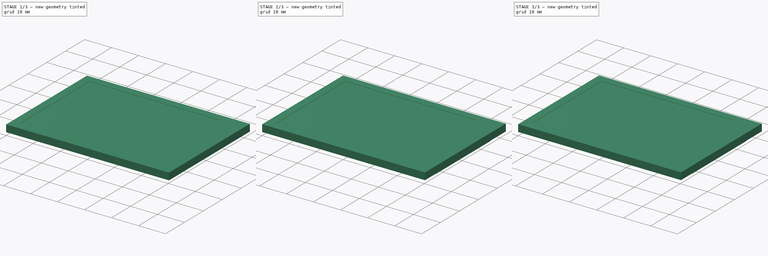
[diagram: build sequence overview — one tinted view per stage of 3, left to right]
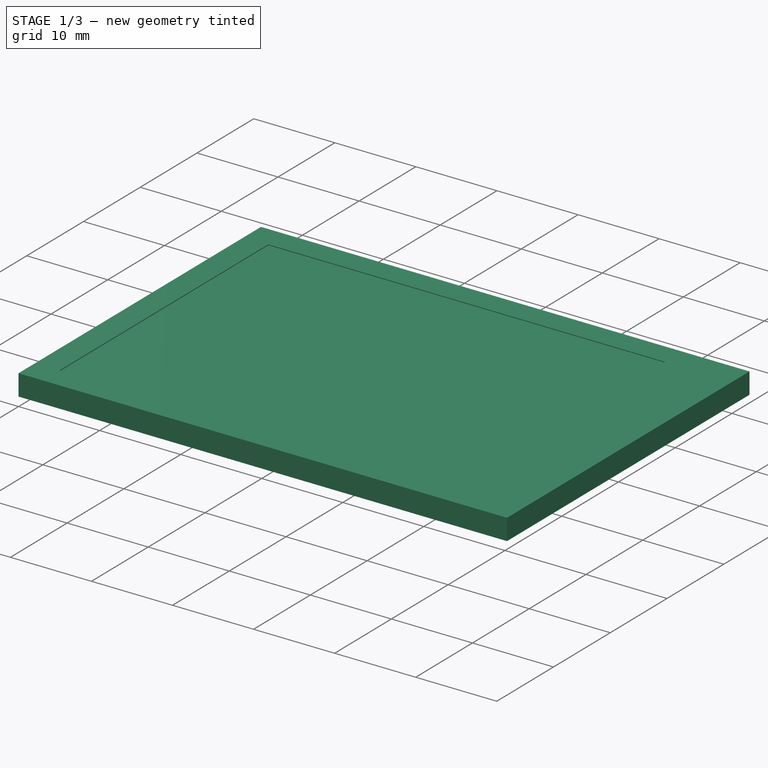
[diagram: stage 1 of 3 — iso view after this stage's code; geometry added in this stage tinted green]
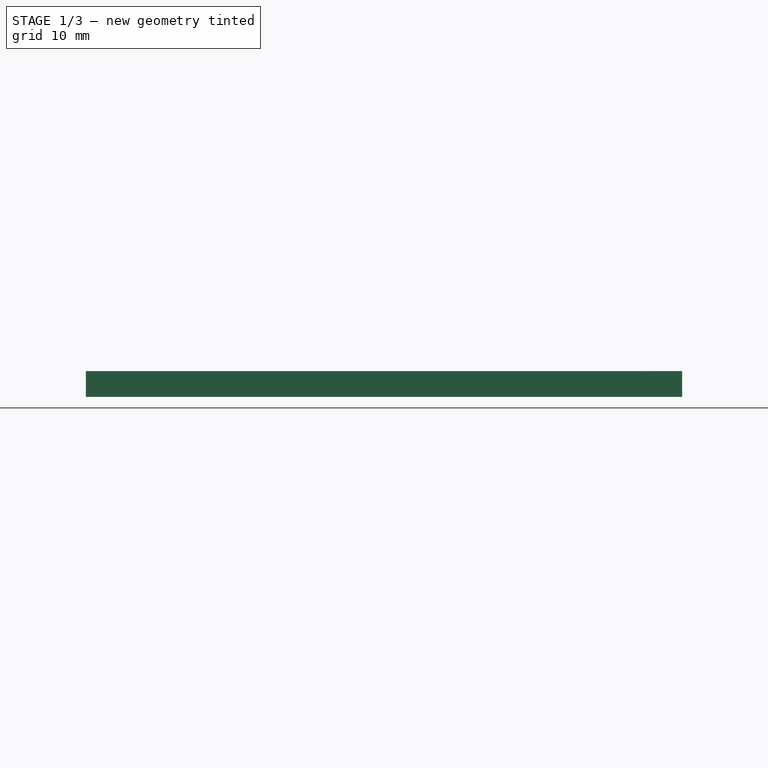
[diagram: stage 1 of 3 — front view after this stage's code; geometry added in this stage tinted green]
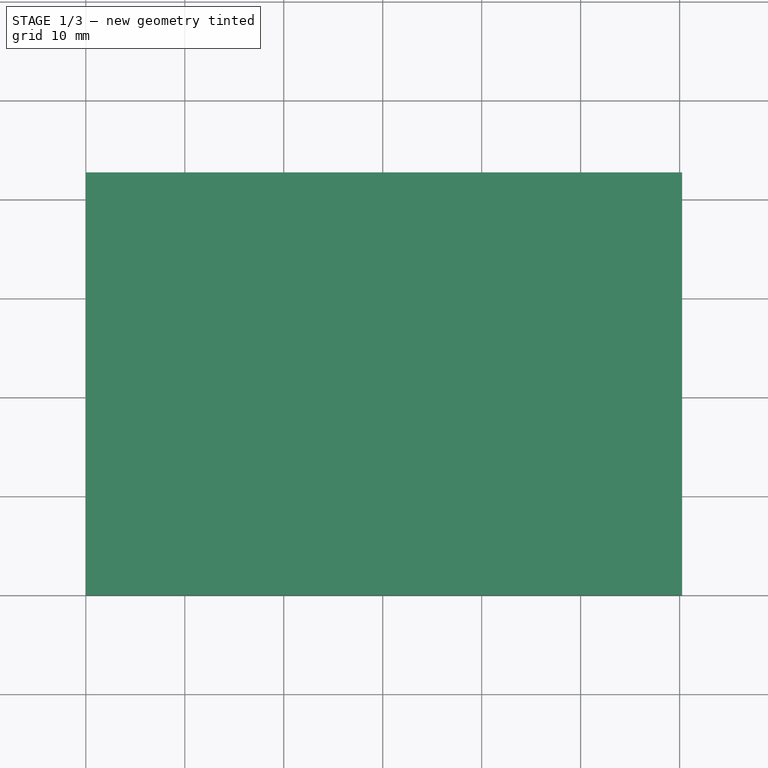
[diagram: stage 1 of 3 — top view after this stage's code; geometry added in this stage tinted green]
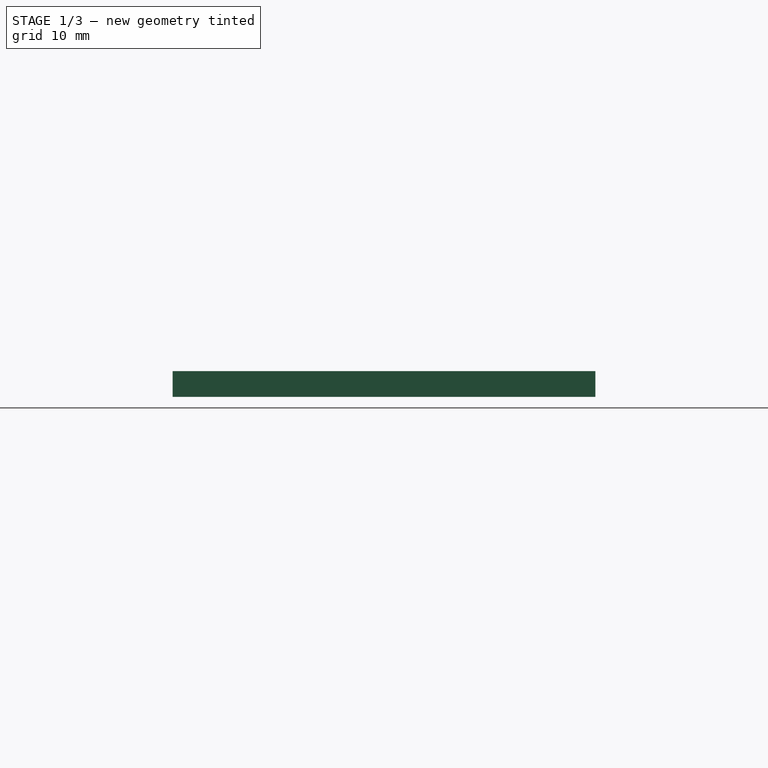
[diagram: stage 1 of 3 — right view after this stage's code; geometry added in this stage tinted green]
FCSTD DOCUMENT  (FreeCAD 0.19R24267 +148 (Git))
Label: 2`4TFT_18P
License: All rights reserved
LicenseURL: http://en.wikipedia.org/wiki/All_rights_reserved
objects: Sketcher::SketchObject×4, PartDesign::Pad×3, PartDesign::Pocket×1, PartDesign::Fillet×1, PartDesign::LinearPattern×1, PartDesign::Body×1
note: 16 computed .brp shape members not serialized (recipe doc carries the construction recipe); baked Part::Feature solids carry a one-line shape summary decoded from their .brp

FEATURE [Sketcher::SketchObject] Sketch
  FullyConstrained = true
  MapMode = 5
  Support = -> [XY_Plane]
  sketch-geometry (4):
    g0: LineSegment StartX=0 StartY=0 StartZ=0 EndX=60.26 EndY=0 EndZ=0
    g1: LineSegment StartX=60.26 StartY=0 StartZ=0 EndX=60.26 EndY=42.72 EndZ=0
    g2: LineSegment StartX=60.26 StartY=42.72 StartZ=0 EndX=0 EndY=42.72 EndZ=0
    g3: LineSegment StartX=0 StartY=42.72 StartZ=0 EndX=0 EndY=0 EndZ=0
  constraints (11):
    c: Coincident(g0,g1)
    c: Coincident(g1,g2)
    c: Coincident(g2,g3)
    c: Coincident(g3,g0)
    c: Horizontal(g0)
    c: Horizontal(g2)
    c: Vertical(g1)
    c: Vertical(g3)
    c: DistanceY(g3,g3) = 42.72
    c: DistanceX(g2,g2) = 60.26
    c: Coincident(g0,g-1)
FEATURE [PartDesign::Pad] Pad
  Direction = (1,1,1)
  Length = 2.6
  Length2 = 100
  Profile = -> Sketch
  Type = 0
FEATURE [Sketcher::SketchObject] Sketch001
  FullyConstrained = true
  MapMode = 5
  Placement = pos=(0,0,2.6) rot=(0,0,1;0rad)
  Support = -> [Pad]
  sketch-geometry (4):
    g0: LineSegment StartX=3 StartY=3 StartZ=0 EndX=51.96 EndY=3 EndZ=0
    g1: LineSegment StartX=51.96 StartY=3 StartZ=0 EndX=51.96 EndY=39.72 EndZ=0
    g2: LineSegment StartX=51.96 StartY=39.72 StartZ=0 EndX=3 EndY=39.72 EndZ=0
    g3: LineSegment StartX=3 StartY=39.72 StartZ=0 EndX=3 EndY=3 EndZ=0
  constraints (12):
    c: Coincident(g0,g1)
    c: Coincident(g1,g2)
    c: Coincident(g2,g3)
    c: Coincident(g3,g0)
    c: Horizontal(g0)
    c: Horizontal(g2)
    c: Vertical(g1)
    c: Vertical(g3)
    c: DistanceX(g-1,g0) = 3
    c: DistanceY(g-1,g0) = 3
    c: DistanceY(g3,g3) = 36.72
    c: DistanceX(g0,g0) = 48.96
FEATURE [PartDesign::Pocket] Pocket
  BaseFeature = -> Pad
  Length = 0.1
  Length2 = 100
  Profile = -> Sketch001
  Type = 0
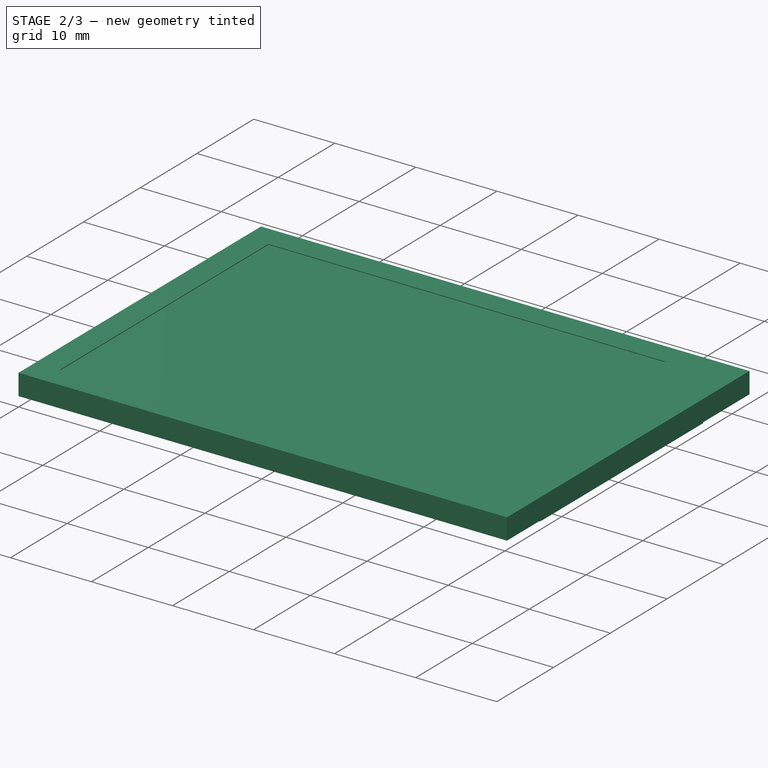
[diagram: stage 2 of 3 — iso view after this stage's code; geometry added in this stage tinted green]
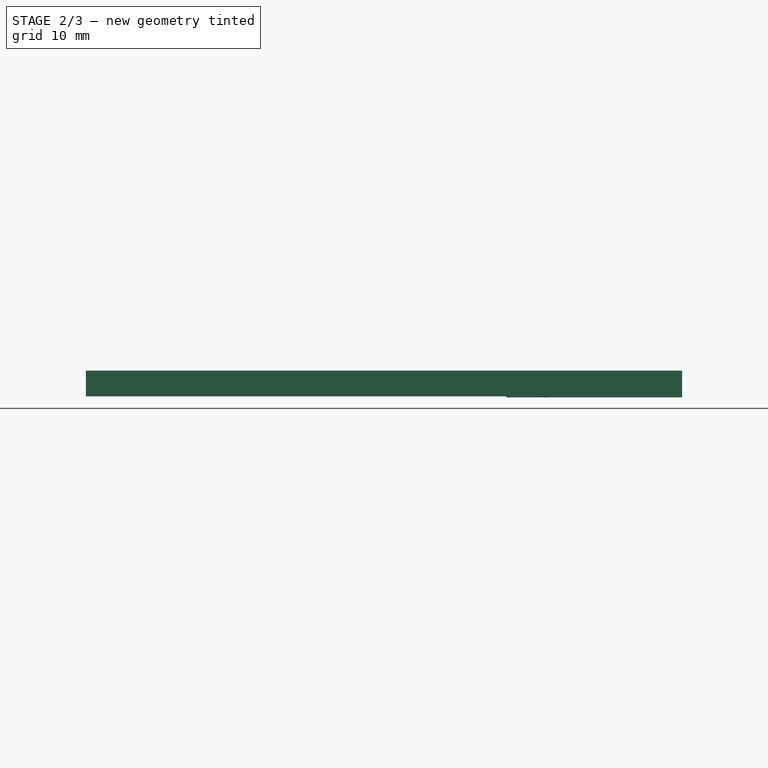
[diagram: stage 2 of 3 — front view after this stage's code; geometry added in this stage tinted green]
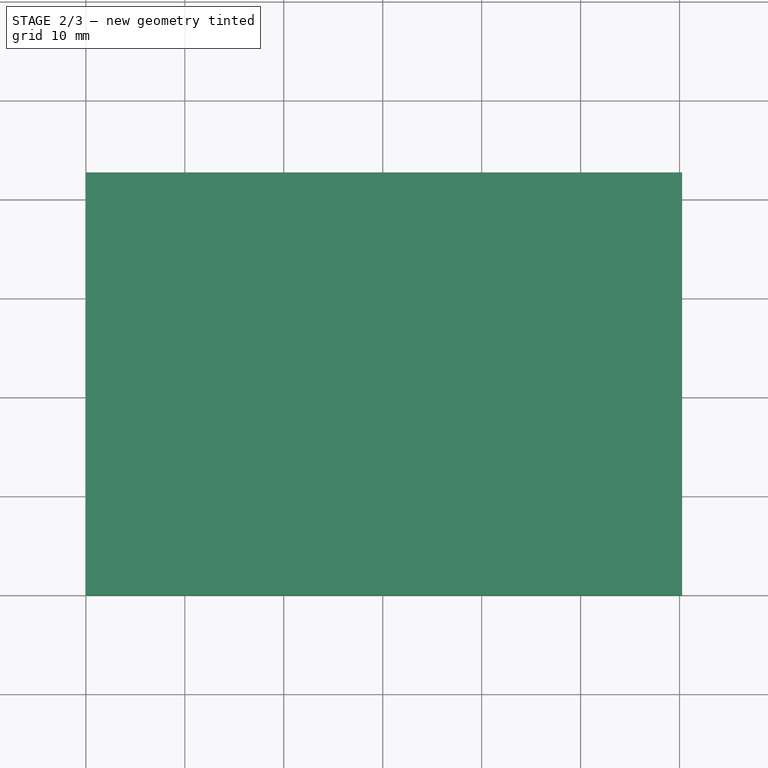
[diagram: stage 2 of 3 — top view after this stage's code; geometry added in this stage tinted green]
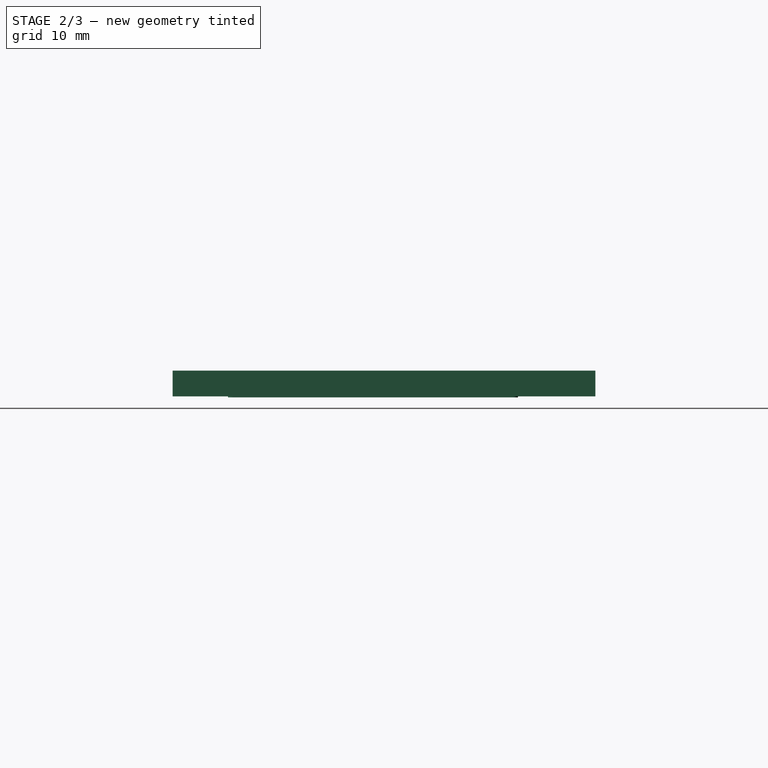
[diagram: stage 2 of 3 — right view after this stage's code; geometry added in this stage tinted green]
FEATURE [Sketcher::SketchObject] Sketch002
  ExternalGeometry = -> [Pocket]
  FullyConstrained = true
  MapMode = 5
  Placement = pos=(0,0,0) rot=(1,0,0;3.14159rad)
  Support = -> [Pocket]
  sketch-geometry (8):
    g0: LineSegment StartX=60.26 StartY=-5.6 StartZ=0 EndX=46.5 EndY=-5.6 EndZ=0
    g1: LineSegment StartX=46.5 StartY=-5.6 StartZ=0 EndX=46.5 EndY=-12.9 EndZ=0
    g2: LineSegment StartX=46.5 StartY=-12.9 StartZ=0 EndX=42.5 EndY=-12.9 EndZ=0
    g3: LineSegment StartX=42.5 StartY=-12.9 StartZ=0 EndX=42.5 EndY=-28.5 EndZ=0
    g4: LineSegment StartX=42.5 StartY=-28.5 StartZ=0 EndX=46.5 EndY=-28.5 EndZ=0
    g5: LineSegment StartX=46.5 StartY=-28.5 StartZ=0 EndX=46.5 EndY=-34.9 EndZ=0
    g6: LineSegment StartX=46.5 StartY=-34.9 StartZ=0 EndX=60.26 EndY=-34.9 EndZ=0
    g7: LineSegment StartX=60.26 StartY=-34.9 StartZ=0 EndX=60.26 EndY=-5.6 EndZ=0
  constraints (24):
    c: Horizontal(g0)
    c: Coincident(g1,g0)
    c: Vertical(g1)
    c: Coincident(g2,g1)
    c: Horizontal(g2)
    c: Coincident(g3,g2)
    c: Vertical(g3)
    c: Coincident(g4,g3)
    c: Horizontal(g4)
    c: Coincident(g5,g4)
    c: Vertical(g5)
    c: Coincident(g6,g5)
    c: Horizontal(g6)
    c: Coincident(g7,g6)
    c: Coincident(g7,g0)
    c: Vertical(g7)
    c: DistanceX(g2,g0) = 17.76
    c: DistanceX(g-3,g6) = 0
    c: DistanceX(g2,g2) = 4
    c: DistanceX(g4,g4) = 4
    c: DistanceY(g3,g3) = 15.6
    c: DistanceY(g-3,g6) = 7.82
    c: DistanceY(g5,g5) = 6.4
    c: DistanceY(g1,g1) = 7.3
FEATURE [PartDesign::Pad] Pad001
  BaseFeature = -> Pocket
  Direction = (1,1,1)
  Length = 0.1
  Length2 = 100
  Profile = -> Sketch002
  Type = 0
FEATURE [PartDesign::Fillet] Fillet
  Base = -> Pad001 [Edge39,Edge37,Edge35,Edge33,Edge31,Edge29,Edge26,Edge27]
  BaseFeature = -> Pad001
  Radius = 0.5
  SupportTransform = false
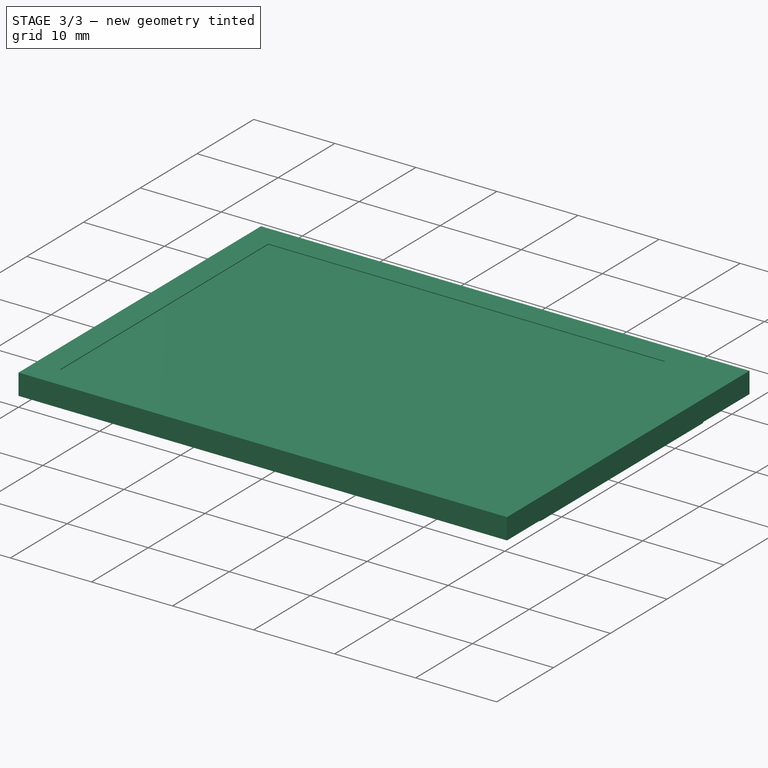
[diagram: stage 3 of 3 — iso view after this stage's code; geometry added in this stage tinted green]
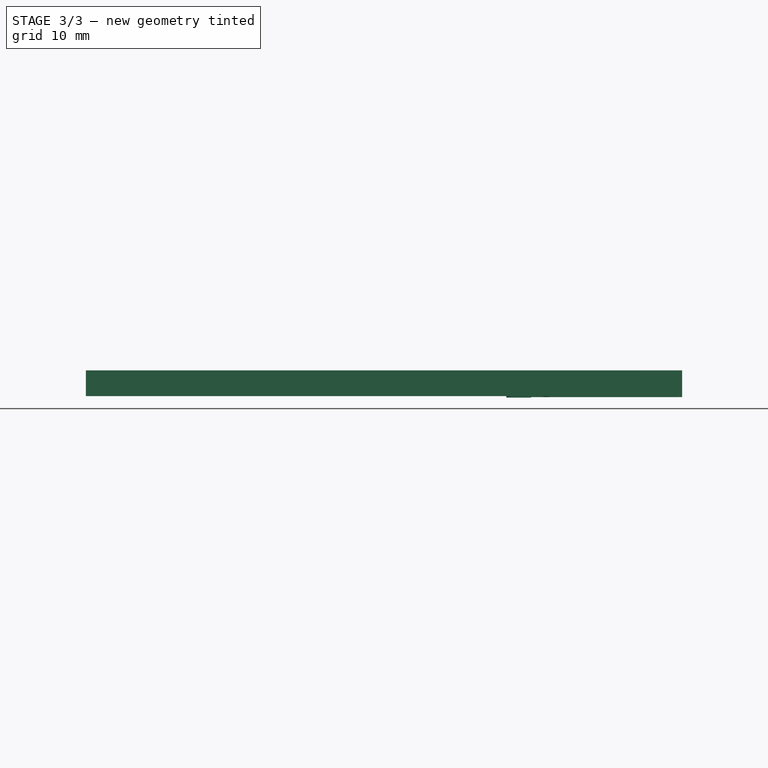
[diagram: stage 3 of 3 — front view after this stage's code; geometry added in this stage tinted green]
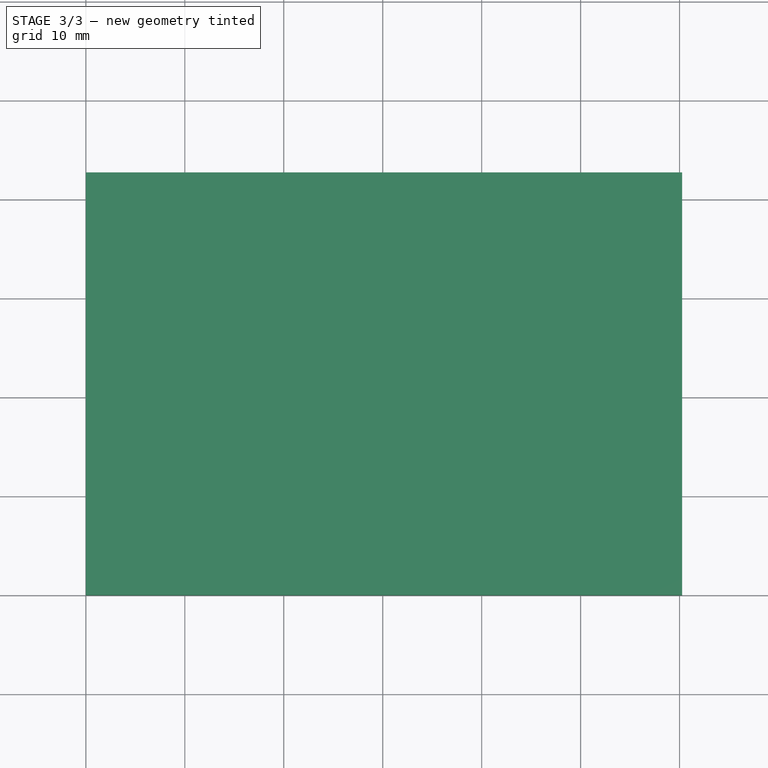
[diagram: stage 3 of 3 — top view after this stage's code; geometry added in this stage tinted green]
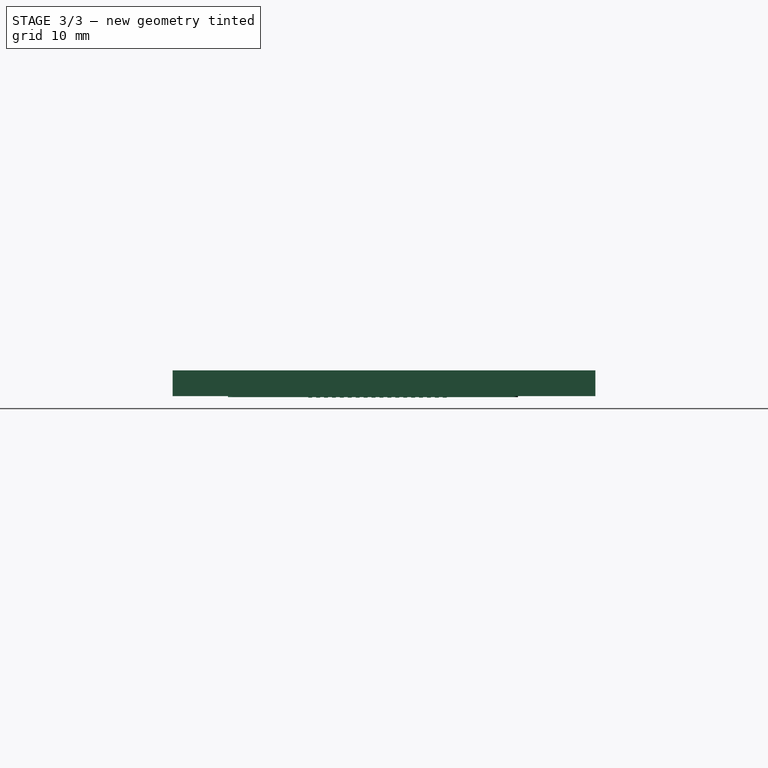
[diagram: stage 3 of 3 — right view after this stage's code; geometry added in this stage tinted green]
FEATURE [Sketcher::SketchObject] Sketch003
  ExternalGeometry = -> [Fillet]
  FullyConstrained = true
  MapMode = 5
  Placement = pos=(0,0,-0.1) rot=(1,0,0;3.14159rad)
  Support = -> [Fillet]
  sketch-geometry (4):
    g0: LineSegment StartX=42.5 StartY=-13.7 StartZ=0 EndX=45 EndY=-13.7 EndZ=0
    g1: LineSegment StartX=45 StartY=-13.7 StartZ=0 EndX=45 EndY=-14.1 EndZ=0
    g2: LineSegment StartX=45 StartY=-14.1 StartZ=0 EndX=42.5 EndY=-14.1 EndZ=0
    g3: LineSegment StartX=42.5 StartY=-14.1 StartZ=0 EndX=42.5 EndY=-13.7 EndZ=0
  constraints (12):
    c: Coincident(g0,g1)
    c: Coincident(g1,g2)
    c: Coincident(g2,g3)
    c: Coincident(g3,g0)
    c: Horizontal(g0)
    c: Horizontal(g2)
    c: Vertical(g1)
    c: Vertical(g3)
    c: DistanceY(g3,g3) = 0.4
    c: DistanceX(g0,g0) = 2.5
    c: DistanceX(g0,g-3) = 0.5
    c: DistanceY(g0,g-3) = 0.8
FEATURE [PartDesign::Pad] Pad002
  BaseFeature = -> Fillet
  Direction = (1,1,1)
  Length = 0.05
  Length2 = 100
  Profile = -> Sketch003
  Type = 0
FEATURE [PartDesign::LinearPattern] LinearPattern
  BaseFeature = -> Pad002
  Direction = -> Y_Axis
  Length = 13.6
  Occurrences = 18
  Originals = -> [Pad002]
FEATURE [PartDesign::Body] Body
  Group = -> [Sketch,Pad,Sketch001,Pocket,Sketch002,Pad001,Fillet,Sketch003,Pad002,LinearPattern]
  Origin = -> Origin
  Tip = -> LinearPattern
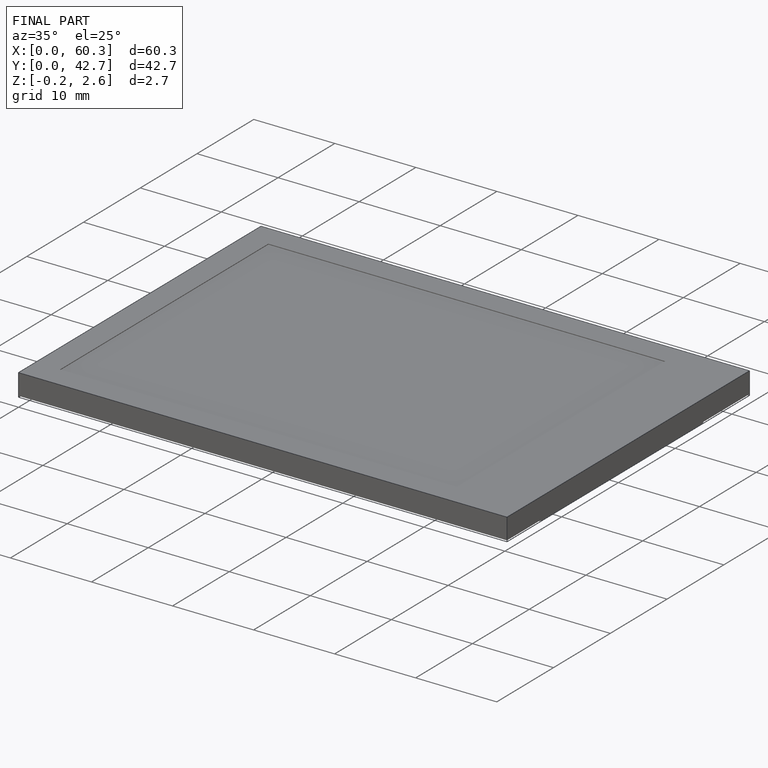
[diagram: finished part — iso view with bounding-box wireframe]
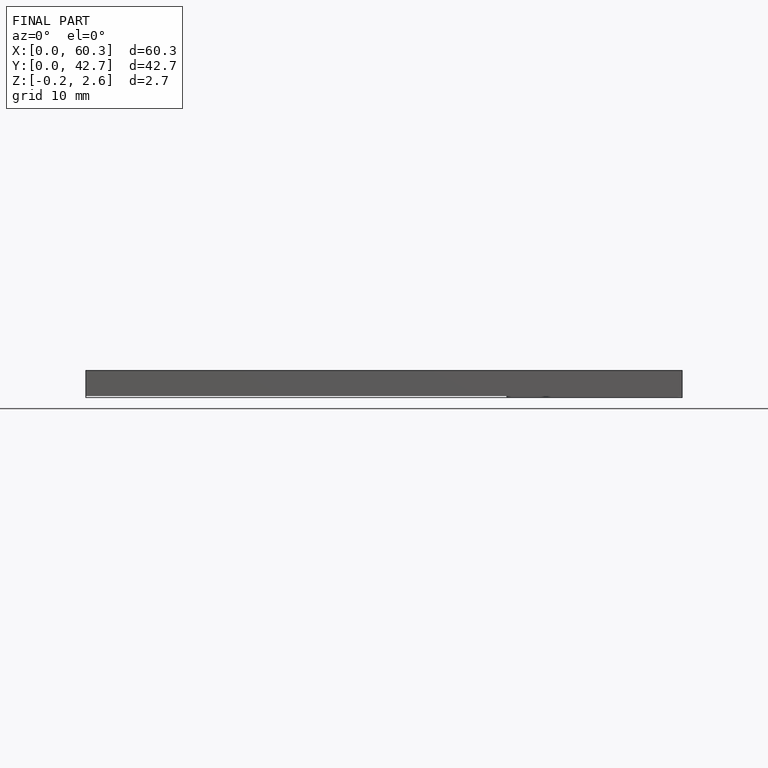
[diagram: finished part — front view with bounding-box wireframe]
